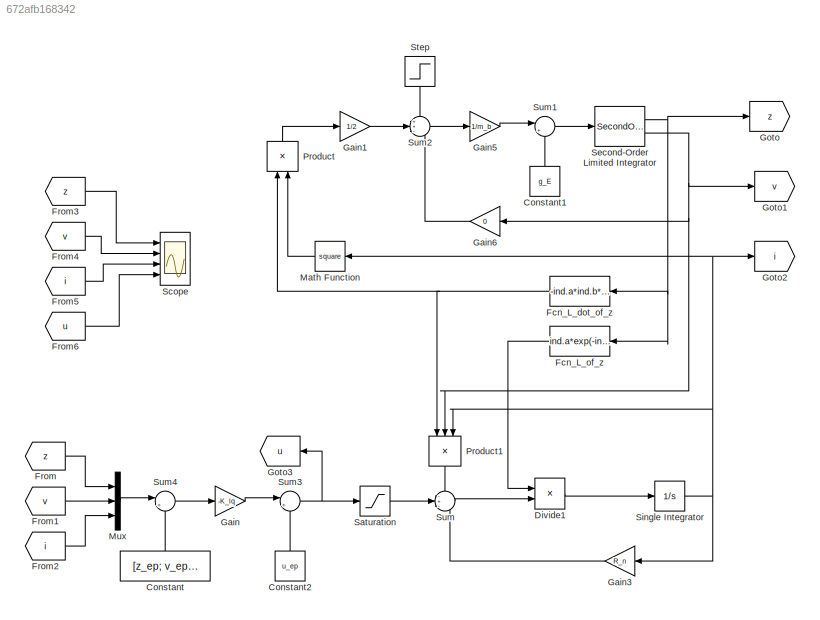
MODEL slx_672afb168342
KIND model
CONFIG AbsTol = auto
CONFIG EnableMultiTasking = on
CONFIG FixedStep = auto
CONFIG MaxStep = 0.001
CONFIG MinStep = auto
CONFIG RelTol = 1e-3
CONFIG SampleTimeConstraint = Unconstrained
CONFIG Solver = ode45
CONFIG SolverName = ode45
CONFIG StartTime = 0.0
CONFIG StopTime = 5
BLOCK [Constant] Constant
  NameLocation = right
  Value = [z_ep; v_ep; i_ep]
BLOCK [Constant] Constant1
  NameLocation = left
  Value = g_E
BLOCK [Constant] Constant2
  NameLocation = left
  Value = u_ep
BLOCK [Product] Divide1
  Inputs = /*
  Ports = [2, 1]
BLOCK [Fcn] Fcn_L_dot_of_z
  Expr = -ind.a*ind.b*exp(-ind.b*u)-ind.d*ind.e*exp(-ind.e*u)
BLOCK [Fcn] Fcn_L_of_z
  Expr = ind.a*exp(-ind.b*u)+ind.c+ind.d*exp(-ind.e*u)
BLOCK [From] From
  GotoTag = z
BLOCK [From] From1
  GotoTag = v
BLOCK [From] From2
  GotoTag = i
BLOCK [From] From3
  GotoTag = z
BLOCK [From] From4
  GotoTag = v
BLOCK [From] From5
  GotoTag = i
BLOCK [From] From6
  GotoTag = u
BLOCK [Gain] Gain
  Gain = -K_lq
  Multiplication = Matrix(K*u) (u vector)
BLOCK [Gain] Gain1
  Gain = 1/2
BLOCK [Gain] Gain3
  Gain = R_n
  NameLocation = top
BLOCK [Gain] Gain5
  Gain = 1/m_b
BLOCK [Gain] Gain6
  Gain = 0
  NameLocation = top
BLOCK [Goto] Goto
  GotoTag = z
  NameLocation = top
BLOCK [Goto] Goto1
  GotoTag = v
BLOCK [Goto] Goto2
  GotoTag = i
BLOCK [Goto] Goto3
  GotoTag = u
  NameLocation = top
BLOCK [Math] Math Function
  NameLocation = top
  Operator = square
  Ports = [1, 1]
  SignedPower = on
BLOCK [Mux] Mux
  DisplayOption = bar
  Inputs = 3
  Ports = [3, 1]
BLOCK [Product] Product
  NameLocation = right
  Ports = [2, 1]
BLOCK [Product] Product1
  Inputs = 3
  NameLocation = left
  Ports = [3, 1]
BLOCK [Saturate] Saturation
  LowerLimit = 0
  UpperLimit = 12
BLOCK [Scope] Scope
  Floating = off
  NumInputPorts = 4
  Ports = [4]
  ScopeSpecificationString = Simulink.scopes.TimeScopeBlockCfg('CurrentConfiguration', extmgr.ConfigurationSet(extmgr.Configuration('Core','General UI',true),extmgr.Configuration('Core','Source UI',true),extmgr.Configuration('Sources','WiredSimulink',true,'DataLoggingSaveFormat','StructureWithTime','DataLoggingLimitDataPoints',true,'DataLoggingDecimation','1','DataLoggingDecimateData',true),extmgr.Configuration('Visuals','Tim...<+3767ch>
BLOCK [SecondOrderIntegrator] Second-Order Limited Integrator
  ICDXDT = v_ep
  ICX = z_ep
  LimitX = on
  LowerLimitX = 0
  Ports = [1, 2]
  UpperLimitX = 0.1
BLOCK [Integrator] Single Integrator
  InitialCondition = i_ep
  Ports = [1, 1]
BLOCK [Step] Step
  After = 0.02
  NameLocation = left
  SampleTime = 0
  Time = 2
BLOCK [Sum] Sum
  Inputs = -+-
  Ports = [3, 1]
BLOCK [Sum] Sum1
  Inputs = |++
  Ports = [2, 1]
BLOCK [Sum] Sum2
  Inputs = ++-
  Ports = [3, 1]
BLOCK [Sum] Sum3
  Inputs = |++
  Ports = [2, 1]
BLOCK [Sum] Sum4
  Inputs = |+-
  Ports = [2, 1]
LINE Constant1:1 -> Sum1:2
LINE Constant2:1 -> Sum3:2
LINE Constant:1 -> Sum4:2
LINE Divide1:1 -> Single Integrator:1
NET Fcn_L_dot_of_z:1 -> Product1:1, Product:1
LINE Fcn_L_of_z:1 -> Divide1:1
LINE From1:1 -> Mux:2
LINE From2:1 -> Mux:3
LINE From3:1 -> Scope:1
LINE From4:1 -> Scope:2
LINE From5:1 -> Scope:3
LINE From6:1 -> Scope:4
LINE From:1 -> Mux:1
LINE Gain1:1 -> Sum2:2
LINE Gain3:1 -> Sum:3
LINE Gain5:1 -> Sum1:1
LINE Gain6:1 -> Sum2:3
LINE Gain:1 -> Sum3:1
LINE Math Function:1 -> Product:2
LINE Mux:1 -> Sum4:1
LINE Product1:1 -> Sum:1
LINE Product:1 -> Gain1:1
LINE Saturation:1 -> Sum:2
NET Second-Order Limited Integrator:1 -> Fcn_L_dot_of_z:1, Fcn_L_of_z:1, Goto:1
NET Second-Order Limited Integrator:2 -> Gain6:1, Goto1:1, Product1:2
NET Single Integrator:1 -> Gain3:1, Goto2:1, Math Function:1, Product1:3
LINE Step:1 -> Sum2:1
LINE Sum1:1 -> Second-Order Limited Integrator:1
LINE Sum2:1 -> Gain5:1
NET Sum3:1 -> Goto3:1, Saturation:1
LINE Sum4:1 -> Gain:1
LINE Sum:1 -> Divide1:2
note: NET lines group one-source signal fan-out (src -> all destinations, sorted); 1:1 wires keep LINE
